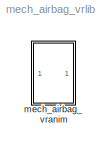
MODEL mech_airbag_vrlib
KIND library
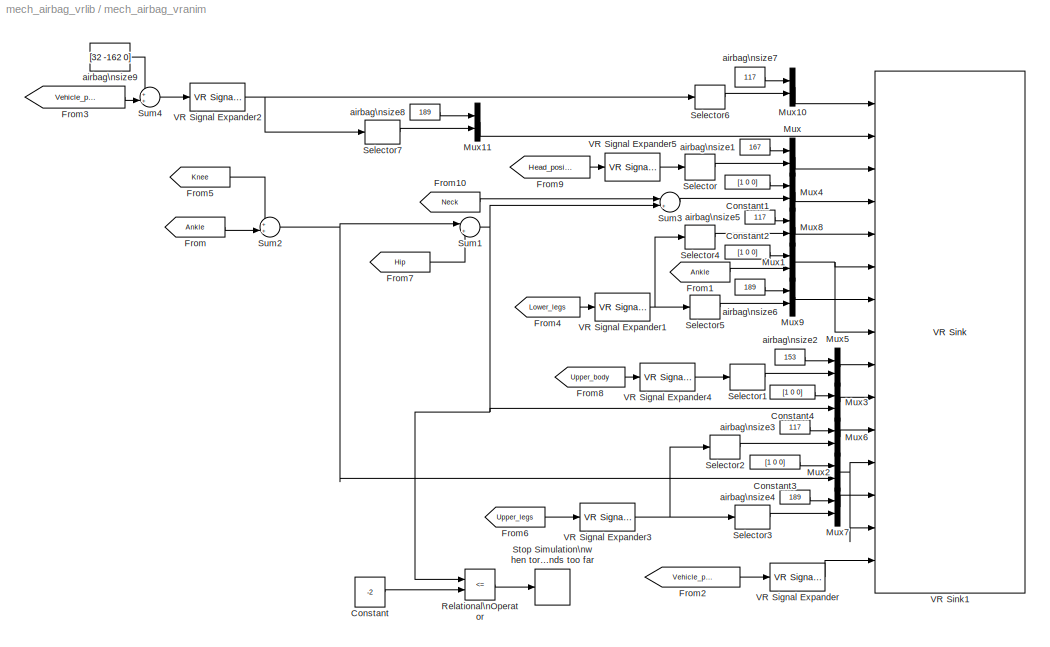
BLOCK [SubSystem] mech_airbag_vranim
  FunctionWithSeparateData = off
  MaskHideContents = off
  MinAlgLoopOccurrences = off
  Opaque = off
  Ports = []
  PropExecContextOutsideSubsystem = off
  RTWSystemCode = Auto
  RequestExecContextInheritance = off
BLOCK [Constant] mech_airbag_vranim/Constant
  OutDataType = sfix(16)
  OutScaling = 2^0
  Value = -2
BLOCK [Constant] mech_airbag_vranim/Constant1
  OutDataType = sfix(16)
  OutScaling = 2^0
  Value = [1 0 0]
BLOCK [Constant] mech_airbag_vranim/Constant2
  OutDataType = sfix(16)
  OutScaling = 2^0
  Value = [1 0 0]
BLOCK [Constant] mech_airbag_vranim/Constant3
  OutDataType = sfix(16)
  OutScaling = 2^0
  Value = [1 0 0]
BLOCK [Constant] mech_airbag_vranim/Constant4
  OutDataType = sfix(16)
  OutScaling = 2^0
  Value = [1 0 0]
BLOCK [From] mech_airbag_vranim/From
  CloseFcn = tagdialog Close
  GotoTag = Ankle
BLOCK [From] mech_airbag_vranim/From1
  CloseFcn = tagdialog Close
  GotoTag = Ankle
BLOCK [From] mech_airbag_vranim/From10
  CloseFcn = tagdialog Close
  GotoTag = Neck
BLOCK [From] mech_airbag_vranim/From2
  CloseFcn = tagdialog Close
  GotoTag = Vehicle_position
BLOCK [From] mech_airbag_vranim/From3
  CloseFcn = tagdialog Close
  GotoTag = Vehicle_position
BLOCK [From] mech_airbag_vranim/From4
  CloseFcn = tagdialog Close
  GotoTag = Lower_legs
BLOCK [From] mech_airbag_vranim/From5
  CloseFcn = tagdialog Close
  GotoTag = Knee
BLOCK [From] mech_airbag_vranim/From6
  CloseFcn = tagdialog Close
  GotoTag = Upper_legs
BLOCK [From] mech_airbag_vranim/From7
  CloseFcn = tagdialog Close
  GotoTag = Hip
BLOCK [From] mech_airbag_vranim/From8
  CloseFcn = tagdialog Close
  GotoTag = Upper_body
BLOCK [From] mech_airbag_vranim/From9
  CloseFcn = tagdialog Close
  GotoTag = Head_position
BLOCK [Mux] mech_airbag_vranim/Mux
  DisplayOption = bar
  Inputs = 2
  Ports = [2, 1]
BLOCK [Mux] mech_airbag_vranim/Mux1
  DisplayOption = bar
  Inputs = 2
  Ports = [2, 1]
BLOCK [Mux] mech_airbag_vranim/Mux10
  DisplayOption = bar
  Inputs = 2
  Ports = [2, 1]
BLOCK [Mux] mech_airbag_vranim/Mux11
  DisplayOption = bar
  Inputs = 2
  Ports = [2, 1]
BLOCK [Mux] mech_airbag_vranim/Mux2
  DisplayOption = bar
  Inputs = 2
  Ports = [2, 1]
BLOCK [Mux] mech_airbag_vranim/Mux3
  DisplayOption = bar
  Inputs = 2
  Ports = [2, 1]
BLOCK [Mux] mech_airbag_vranim/Mux4
  DisplayOption = bar
  Inputs = 2
  Ports = [2, 1]
BLOCK [Mux] mech_airbag_vranim/Mux5
  DisplayOption = bar
  Inputs = 2
  Ports = [2, 1]
BLOCK [Mux] mech_airbag_vranim/Mux6
  DisplayOption = bar
  Inputs = 2
  Ports = [2, 1]
BLOCK [Mux] mech_airbag_vranim/Mux7
  DisplayOption = bar
  Inputs = 2
  Ports = [2, 1]
BLOCK [Mux] mech_airbag_vranim/Mux8
  DisplayOption = bar
  Inputs = 2
  Ports = [2, 1]
BLOCK [Mux] mech_airbag_vranim/Mux9
  DisplayOption = bar
  Inputs = 2
  Ports = [2, 1]
BLOCK [RelationalOperator] mech_airbag_vranim/Relational\nOperator
  Operator = <=
  ZeroCross = off
BLOCK [Selector] mech_airbag_vranim/Selector
  IndexOptions = Index vector (dialog)
  Indices = [2 3]
  InputPortWidth = 3
  OutputSizes = 1
  Ports = [1, 1]
BLOCK [Selector] mech_airbag_vranim/Selector1
  IndexOptions = Index vector (dialog)
  Indices = [2 3]
  InputPortWidth = 3
  OutputSizes = 1
  Ports = [1, 1]
BLOCK [Selector] mech_airbag_vranim/Selector2
  IndexOptions = Index vector (dialog)
  Indices = [2 3]
  InputPortWidth = 3
  OutputSizes = 1
  Ports = [1, 1]
BLOCK [Selector] mech_airbag_vranim/Selector3
  IndexOptions = Index vector (dialog)
  Indices = [2 3]
  InputPortWidth = 3
  OutputSizes = 1
  Ports = [1, 1]
BLOCK [Selector] mech_airbag_vranim/Selector4
  IndexOptions = Index vector (dialog)
  Indices = [2 3]
  InputPortWidth = 3
  OutputSizes = 1
  Ports = [1, 1]
BLOCK [Selector] mech_airbag_vranim/Selector5
  IndexOptions = Index vector (dialog)
  Indices = [2 3]
  InputPortWidth = 3
  OutputSizes = 1
  Ports = [1, 1]
BLOCK [Selector] mech_airbag_vranim/Selector6
  IndexOptions = Index vector (dialog)
  Indices = [2 3]
  InputPortWidth = 3
  OutputSizes = 1
  Ports = [1, 1]
BLOCK [Selector] mech_airbag_vranim/Selector7
  IndexOptions = Index vector (dialog)
  Indices = [2 3]
  InputPortWidth = 3
  OutputSizes = 1
  Ports = [1, 1]
BLOCK [Stop] mech_airbag_vranim/Stop Simulation\nwhen torso bends too far
BLOCK [Sum] mech_airbag_vranim/Sum1
  IconShape = round
  Inputs = |++
  OutDataType = sfix(16)
  OutScaling = 2^0
  Ports = [2, 1]
BLOCK [Sum] mech_airbag_vranim/Sum2
  IconShape = round
  Inputs = ++|
  OutDataType = sfix(16)
  OutScaling = 2^0
  Ports = [2, 1]
BLOCK [Sum] mech_airbag_vranim/Sum3
  IconShape = round
  Inputs = |++
  OutDataType = sfix(16)
  OutScaling = 2^0
  Ports = [2, 1]
BLOCK [Sum] mech_airbag_vranim/Sum4
  IconShape = round
  Inputs = ++|
  OutDataType = sfix(16)
  OutScaling = 2^0
  Ports = [2, 1]
BLOCK [Reference] mech_airbag_vranim/VR Signal Expander  REF=vrlib/VR Signal Expander
  FunctionWithSeparateData = off
  Ports = [1, 1]
  RTWMemSecDataConstants = Inherit from model
  RTWMemSecDataInternal = Inherit from model
  RTWMemSecDataParameters = Inherit from model
  RTWMemSecFuncExecute = Inherit from model
  RTWMemSecFuncInitTerm = Inherit from model
  ShowPortLabels = FromPortIcon
  SourceBlock = vrlib/VR Signal Expander
  SourceType = VR Signal Expander
  SystemSampleTime = -1
  outidx = [2 3 1]
  outwidth = 3
BLOCK [Reference] mech_airbag_vranim/VR Signal Expander1  REF=vrlib/VR Signal Expander
  FunctionWithSeparateData = off
  Ports = [1, 1]
  RTWMemSecDataConstants = Inherit from model
  RTWMemSecDataInternal = Inherit from model
  RTWMemSecDataParameters = Inherit from model
  RTWMemSecFuncExecute = Inherit from model
  RTWMemSecFuncInitTerm = Inherit from model
  ShowPortLabels = FromPortIcon
  SourceBlock = vrlib/VR Signal Expander
  SourceType = VR Signal Expander
  SystemSampleTime = -1
  outidx = [2 3 1]
  outwidth = 3
BLOCK [Reference] mech_airbag_vranim/VR Signal Expander2  REF=vrlib/VR Signal Expander
  FunctionWithSeparateData = off
  Ports = [1, 1]
  RTWMemSecDataConstants = Inherit from model
  RTWMemSecDataInternal = Inherit from model
  RTWMemSecDataParameters = Inherit from model
  RTWMemSecFuncExecute = Inherit from model
  RTWMemSecFuncInitTerm = Inherit from model
  ShowPortLabels = FromPortIcon
  SourceBlock = vrlib/VR Signal Expander
  SourceType = VR Signal Expander
  SystemSampleTime = -1
  outidx = [2 3 1]
  outwidth = 3
BLOCK [Reference] mech_airbag_vranim/VR Signal Expander3  REF=vrlib/VR Signal Expander
  FunctionWithSeparateData = off
  Ports = [1, 1]
  RTWMemSecDataConstants = Inherit from model
  RTWMemSecDataInternal = Inherit from model
  RTWMemSecDataParameters = Inherit from model
  RTWMemSecFuncExecute = Inherit from model
  RTWMemSecFuncInitTerm = Inherit from model
  ShowPortLabels = FromPortIcon
  SourceBlock = vrlib/VR Signal Expander
  SourceType = VR Signal Expander
  SystemSampleTime = -1
  outidx = [2 3 1]
  outwidth = 3
BLOCK [Reference] mech_airbag_vranim/VR Signal Expander4  REF=vrlib/VR Signal Expander
  FunctionWithSeparateData = off
  Ports = [1, 1]
  RTWMemSecDataConstants = Inherit from model
  RTWMemSecDataInternal = Inherit from model
  RTWMemSecDataParameters = Inherit from model
  RTWMemSecFuncExecute = Inherit from model
  RTWMemSecFuncInitTerm = Inherit from model
  ShowPortLabels = FromPortIcon
  SourceBlock = vrlib/VR Signal Expander
  SourceType = VR Signal Expander
  SystemSampleTime = -1
  outidx = [2 3 1]
  outwidth = 3
BLOCK [Reference] mech_airbag_vranim/VR Signal Expander5  REF=vrlib/VR Signal Expander
  FunctionWithSeparateData = off
  Ports = [1, 1]
  RTWMemSecDataConstants = Inherit from model
  RTWMemSecDataInternal = Inherit from model
  RTWMemSecDataParameters = Inherit from model
  RTWMemSecFuncExecute = Inherit from model
  RTWMemSecFuncInitTerm = Inherit from model
  ShowPortLabels = FromPortIcon
  SourceBlock = vrlib/VR Signal Expander
  SourceType = VR Signal Expander
  SystemSampleTime = -1
  outidx = [2 3 1]
  outwidth = 3
BLOCK [Reference] mech_airbag_vranim/VR Sink1  REF=vrlib/VR Sink
  AutoView = off
  FieldsWritten = footL.translation#footR.translation#headCOG.translation#headROT.rotation#lowerlegL.translation#lowerlegLROT.rotation#lowerlegR.translation#lowerlegRROT.rotation#torsoCOG.translation#torsoROT.rotation#upperlegL.translation#upperlegLROT.rotation#upperlegR.translation#upperlegRROT.rotation#vehicle.translation
  FigureProperties = {}
  Ports = [15]
  RemoteChange = off
  RemoteView = off
  SampleTime = 0.05
  SourceBlock = vrlib/VR Sink
  SourceType = Virtual Reality Sink
  VideoDimensions = []
  ViewEnable = on
  WorldDescription = Passenger Collision Model
  WorldFileName = mech_airbag_world.wrl
BLOCK [Constant] mech_airbag_vranim/airbag\nsize1
  OutDataType = sfix(16)
  OutScaling = 2^0
  Value = 167
BLOCK [Constant] mech_airbag_vranim/airbag\nsize2
  OutDataType = sfix(16)
  OutScaling = 2^0
  Value = 153
BLOCK [Constant] mech_airbag_vranim/airbag\nsize3
  OutDataType = sfix(16)
  OutScaling = 2^0
  Value = 117
BLOCK [Constant] mech_airbag_vranim/airbag\nsize4
  OutDataType = sfix(16)
  OutScaling = 2^0
  Value = 189
BLOCK [Constant] mech_airbag_vranim/airbag\nsize5
  OutDataType = sfix(16)
  OutScaling = 2^0
  Value = 117
BLOCK [Constant] mech_airbag_vranim/airbag\nsize6
  OutDataType = sfix(16)
  OutScaling = 2^0
  Value = 189
BLOCK [Constant] mech_airbag_vranim/airbag\nsize7
  OutDataType = sfix(16)
  OutScaling = 2^0
  Value = 117
BLOCK [Constant] mech_airbag_vranim/airbag\nsize8
  OutDataType = sfix(16)
  OutScaling = 2^0
  Value = 189
BLOCK [Constant] mech_airbag_vranim/airbag\nsize9
  OutDataType = sfix(16)
  OutScaling = 2^0
  Value = [32 -162 0]
LINE mech_airbag_vranim/Constant1:1 -> mech_airbag_vranim/Mux4:1
LINE mech_airbag_vranim/Constant2:1 -> mech_airbag_vranim/Mux1:1
LINE mech_airbag_vranim/Constant3:1 -> mech_airbag_vranim/Mux2:1
LINE mech_airbag_vranim/Constant4:1 -> mech_airbag_vranim/Mux3:1
LINE mech_airbag_vranim/Constant:1 -> mech_airbag_vranim/Relational\nOperator:2
LINE mech_airbag_vranim/From10:1 -> mech_airbag_vranim/Sum3:1
LINE mech_airbag_vranim/From1:1 -> mech_airbag_vranim/Mux1:2
LINE mech_airbag_vranim/From2:1 -> mech_airbag_vranim/VR Signal Expander:1
LINE mech_airbag_vranim/From3:1 -> mech_airbag_vranim/Sum4:2
LINE mech_airbag_vranim/From4:1 -> mech_airbag_vranim/VR Signal Expander1:1
LINE mech_airbag_vranim/From5:1 -> mech_airbag_vranim/Sum2:1
LINE mech_airbag_vranim/From6:1 -> mech_airbag_vranim/VR Signal Expander3:1
LINE mech_airbag_vranim/From7:1 -> mech_airbag_vranim/Sum1:2
LINE mech_airbag_vranim/From8:1 -> mech_airbag_vranim/VR Signal Expander4:1
LINE mech_airbag_vranim/From9:1 -> mech_airbag_vranim/VR Signal Expander5:1
LINE mech_airbag_vranim/From:1 -> mech_airbag_vranim/Sum2:2
LINE mech_airbag_vranim/Mux10:1 -> mech_airbag_vranim/VR Sink1:1
LINE mech_airbag_vranim/Mux11:1 -> mech_airbag_vranim/VR Sink1:2
NET mech_airbag_vranim/Mux1:1 -> mech_airbag_vranim/VR Sink1:6, mech_airbag_vranim/VR Sink1:8
NET mech_airbag_vranim/Mux2:1 -> mech_airbag_vranim/VR Sink1:12, mech_airbag_vranim/VR Sink1:14
LINE mech_airbag_vranim/Mux3:1 -> mech_airbag_vranim/VR Sink1:10
LINE mech_airbag_vranim/Mux4:1 -> mech_airbag_vranim/VR Sink1:4
LINE mech_airbag_vranim/Mux5:1 -> mech_airbag_vranim/VR Sink1:9
LINE mech_airbag_vranim/Mux6:1 -> mech_airbag_vranim/VR Sink1:11
LINE mech_airbag_vranim/Mux7:1 -> mech_airbag_vranim/VR Sink1:13
LINE mech_airbag_vranim/Mux8:1 -> mech_airbag_vranim/VR Sink1:5
LINE mech_airbag_vranim/Mux9:1 -> mech_airbag_vranim/VR Sink1:7
LINE mech_airbag_vranim/Mux:1 -> mech_airbag_vranim/VR Sink1:3
LINE mech_airbag_vranim/Relational\nOperator:1 -> mech_airbag_vranim/Stop Simulation\nwhen torso bends too far:1
LINE mech_airbag_vranim/Selector1:1 -> mech_airbag_vranim/Mux5:2
LINE mech_airbag_vranim/Selector2:1 -> mech_airbag_vranim/Mux6:2
LINE mech_airbag_vranim/Selector3:1 -> mech_airbag_vranim/Mux7:2
LINE mech_airbag_vranim/Selector4:1 -> mech_airbag_vranim/Mux8:2
LINE mech_airbag_vranim/Selector5:1 -> mech_airbag_vranim/Mux9:2
LINE mech_airbag_vranim/Selector6:1 -> mech_airbag_vranim/Mux10:2
LINE mech_airbag_vranim/Selector7:1 -> mech_airbag_vranim/Mux11:2
LINE mech_airbag_vranim/Selector:1 -> mech_airbag_vranim/Mux:2
NET mech_airbag_vranim/Sum1:1 -> mech_airbag_vranim/Mux3:2, mech_airbag_vranim/Relational\nOperator:1, mech_airbag_vranim/Sum3:2
NET mech_airbag_vranim/Sum2:1 -> mech_airbag_vranim/Mux2:2, mech_airbag_vranim/Sum1:1
LINE mech_airbag_vranim/Sum3:1 -> mech_airbag_vranim/Mux4:2
LINE mech_airbag_vranim/Sum4:1 -> mech_airbag_vranim/VR Signal Expander2:1
NET mech_airbag_vranim/VR Signal Expander1:1 -> mech_airbag_vranim/Selector4:1, mech_airbag_vranim/Selector5:1
NET mech_airbag_vranim/VR Signal Expander2:1 -> mech_airbag_vranim/Selector6:1, mech_airbag_vranim/Selector7:1
NET mech_airbag_vranim/VR Signal Expander3:1 -> mech_airbag_vranim/Selector2:1, mech_airbag_vranim/Selector3:1
LINE mech_airbag_vranim/VR Signal Expander4:1 -> mech_airbag_vranim/Selector1:1
LINE mech_airbag_vranim/VR Signal Expander5:1 -> mech_airbag_vranim/Selector:1
LINE mech_airbag_vranim/VR Signal Expander:1 -> mech_airbag_vranim/VR Sink1:15
LINE mech_airbag_vranim/airbag\nsize1:1 -> mech_airbag_vranim/Mux:1
LINE mech_airbag_vranim/airbag\nsize2:1 -> mech_airbag_vranim/Mux5:1
LINE mech_airbag_vranim/airbag\nsize3:1 -> mech_airbag_vranim/Mux6:1
LINE mech_airbag_vranim/airbag\nsize4:1 -> mech_airbag_vranim/Mux7:1
LINE mech_airbag_vranim/airbag\nsize5:1 -> mech_airbag_vranim/Mux8:1
LINE mech_airbag_vranim/airbag\nsize6:1 -> mech_airbag_vranim/Mux9:1
LINE mech_airbag_vranim/airbag\nsize7:1 -> mech_airbag_vranim/Mux10:1
LINE mech_airbag_vranim/airbag\nsize8:1 -> mech_airbag_vranim/Mux11:1
LINE mech_airbag_vranim/airbag\nsize9:1 -> mech_airbag_vranim/Sum4:1
note: NET lines group one-source signal fan-out (src -> all destinations, sorted); 1:1 wires keep LINE
